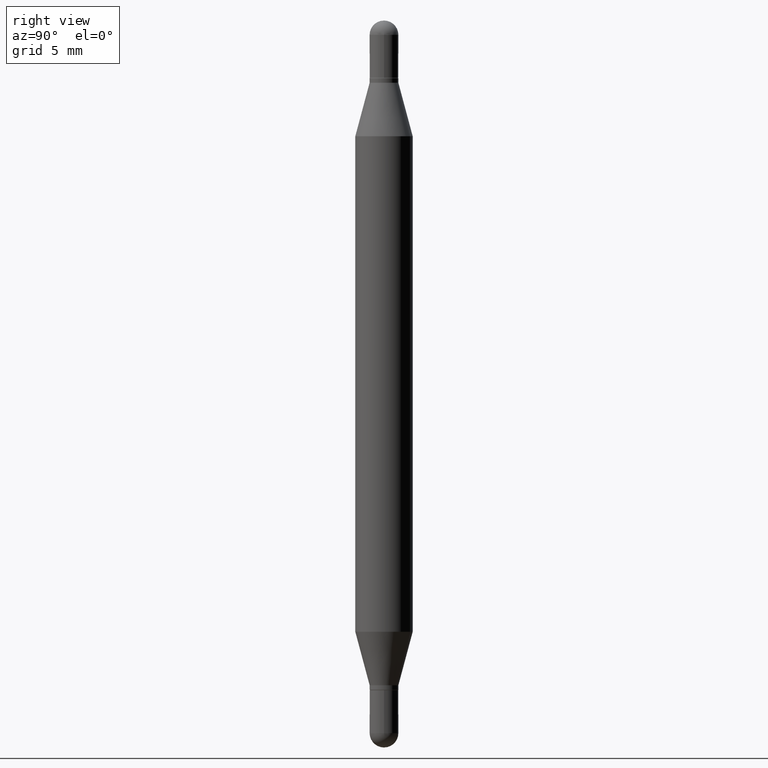
[diagram: clean part render]
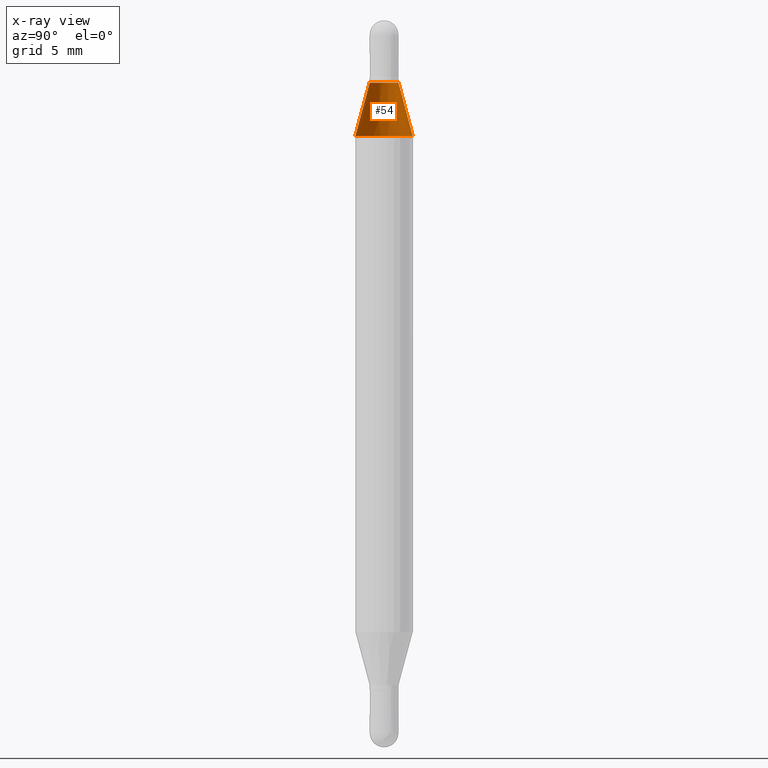
[diagram: x-ray — body ghosted, one internal face saturated and labeled with its STEP entity id]
A machine part, right view, then the same camera in x-ray: the body is ghosted and one INTERNAL B-rep face — a face not visible from any outside direction — is saturated and labeled: STEP entity #54.
In plain terms, the highlighted conical surface has half-angle 15 deg.
Its self-contained STEP definition (entity closure, byte-faithful):
#54 = ADVANCED_FACE ( 'NONE', ( #140 ), #87, .T. ) ;
#57 = LINE ( 'NONE', #823, #789 ) ;
#72 = DIRECTION ( 'NONE',  ( 2.445418291854792359E-29, 3.479542127581678408E-15, 1.000000000000000000 ) ) ;
#76 = ORIENTED_EDGE ( 'NONE', *, *, #1103, .F. ) ;
#87 = CONICAL_SURFACE ( 'NONE', #972, 0.02954999999999992008, 0.2617993877991506846 ) ;
#90 = DIRECTION ( 'NONE',  ( -6.982962677686265922E-15, -1.000000000000000000, 3.469747663417777397E-15 ) ) ;
#126 = CIRCLE ( 'NONE', #1044, 0.05904999999999999832 ) ;
#132 = EDGE_CURVE ( 'NONE', #888, #538, #126, .T. ) ;
#138 = CARTESIAN_POINT ( 'NONE',  ( 4.051124067684396338E-16, 0.05904999999999916566, -0.2380954988232819591 ) ) ;
#140 = FACE_OUTER_BOUND ( 'NONE', #679, .T. ) ;
#167 = DIRECTION ( 'NONE',  ( -6.982962677686265922E-15, -1.000000000000000000, 3.466812174700850954E-15 ) ) ;
#222 = DIRECTION ( 'NONE',  ( -2.445418291854792359E-29, -3.479542127581678408E-15, -1.000000000000000000 ) ) ;
#249 = CARTESIAN_POINT ( 'NONE',  ( 3.076347218413210286E-29, -8.374485590126139581E-16, -0.2380954988232817371 ) ) ;
#341 = ORIENTED_EDGE ( 'NONE', *, *, #132, .T. ) ;
#344 = ORIENTED_EDGE ( 'NONE', *, *, #422, .F. ) ;
#407 = CIRCLE ( 'NONE', #442, 0.02954999999999992008 ) ;
#410 = EDGE_CURVE ( 'NONE', #1032, #888, #525, .T. ) ;
#422 = EDGE_CURVE ( 'NONE', #450, #538, #57, .T. ) ;
#442 = AXIS2_PLACEMENT_3D ( 'NONE', #1028, #72, #167 ) ;
#450 = VERTEX_POINT ( 'NONE', #637 ) ;
#468 = DIRECTION ( 'NONE',  ( -1.807323732225332900E-15, -0.2588190451025253469, -0.9659258262890670910 ) ) ;
#473 = CARTESIAN_POINT ( 'NONE',  ( 2.027277158341816396E-16, 0.02954999999999946558, -0.1280000000000002247 ) ) ;
#486 = CARTESIAN_POINT ( 'NONE',  ( 3.345576765086540721E-29, -4.543666327998865976E-16, -0.1280000000000001137 ) ) ;
#502 = DIRECTION ( 'NONE',  ( 2.445418291854792359E-29, 3.479542127581678408E-15, 1.000000000000000000 ) ) ;
#525 = LINE ( 'NONE', #473, #643 ) ;
#538 = VERTEX_POINT ( 'NONE', #903 ) ;
#589 = CARTESIAN_POINT ( 'NONE',  ( 2.027277158341817629E-16, 0.02954999999999946558, -0.1280000000000002247 ) ) ;
#637 = CARTESIAN_POINT ( 'NONE',  ( -2.063465471255951471E-16, -0.02955000000000037111, -0.1280000000000000027 ) ) ;
#643 = VECTOR ( 'NONE', #995, 39.37007874015748143 ) ;
#679 = EDGE_LOOP ( 'NONE', ( #76, #725, #341, #344 ) ) ;
#725 = ORIENTED_EDGE ( 'NONE', *, *, #410, .T. ) ;
#789 = VECTOR ( 'NONE', #468, 39.37007874015748143 ) ;
#823 = CARTESIAN_POINT ( 'NONE',  ( -2.063465471255951471E-16, -0.02955000000000037111, -0.1280000000000000027 ) ) ;
#888 = VERTEX_POINT ( 'NONE', #138 ) ;
#903 = CARTESIAN_POINT ( 'NONE',  ( -4.123439461173433164E-16, -0.05905000000000083793, -0.2380954988232815428 ) ) ;
#904 = DIRECTION ( 'NONE',  ( -6.982962677686265922E-15, -1.000000000000000000, 3.466812174700850954E-15 ) ) ;
#972 = AXIS2_PLACEMENT_3D ( 'NONE', #486, #222, #904 ) ;
#995 = DIRECTION ( 'NONE',  ( 1.775627540710967864E-15, 0.2588190451025185745, -0.9659258262890689783 ) ) ;
#1028 = CARTESIAN_POINT ( 'NONE',  ( 3.345576765086540721E-29, -4.543666327998865976E-16, -0.1280000000000001137 ) ) ;
#1032 = VERTEX_POINT ( 'NONE', #589 ) ;
#1044 = AXIS2_PLACEMENT_3D ( 'NONE', #249, #502, #90 ) ;
#1103 = EDGE_CURVE ( 'NONE', #1032, #450, #407, .T. ) ;